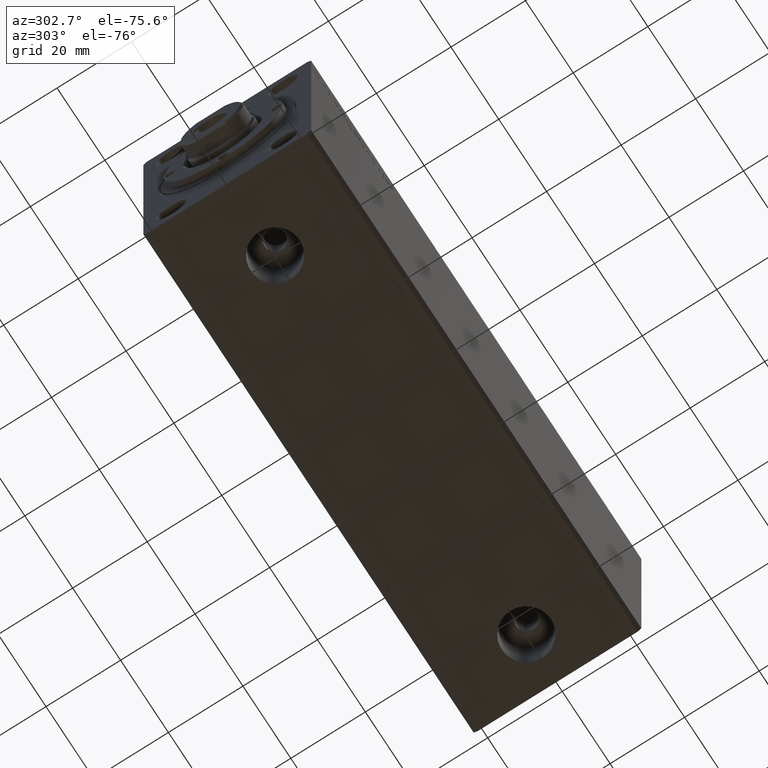
[diagram: clean part render]
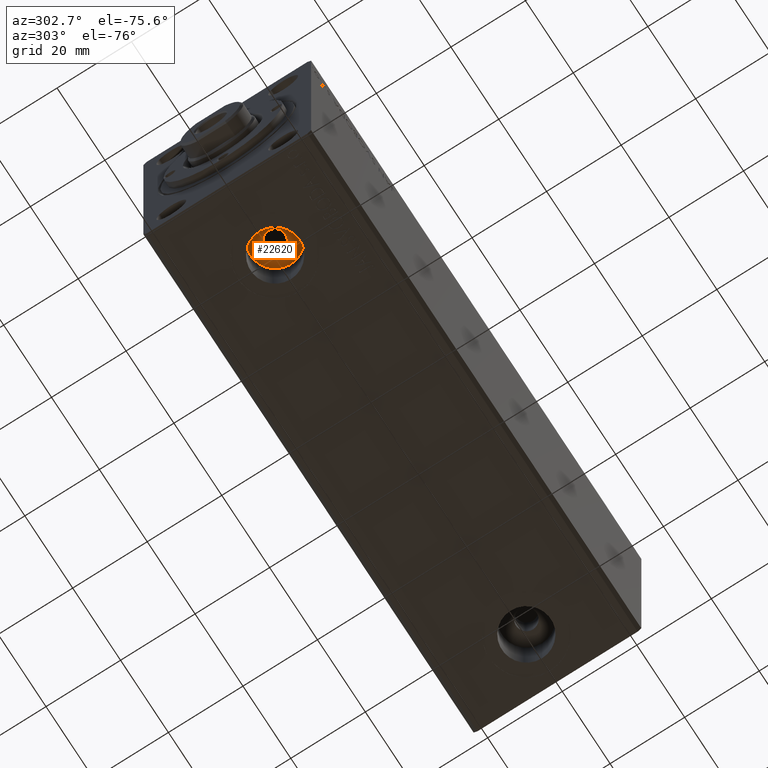
[diagram: same view with one face highlighted and labeled with its STEP entity id]
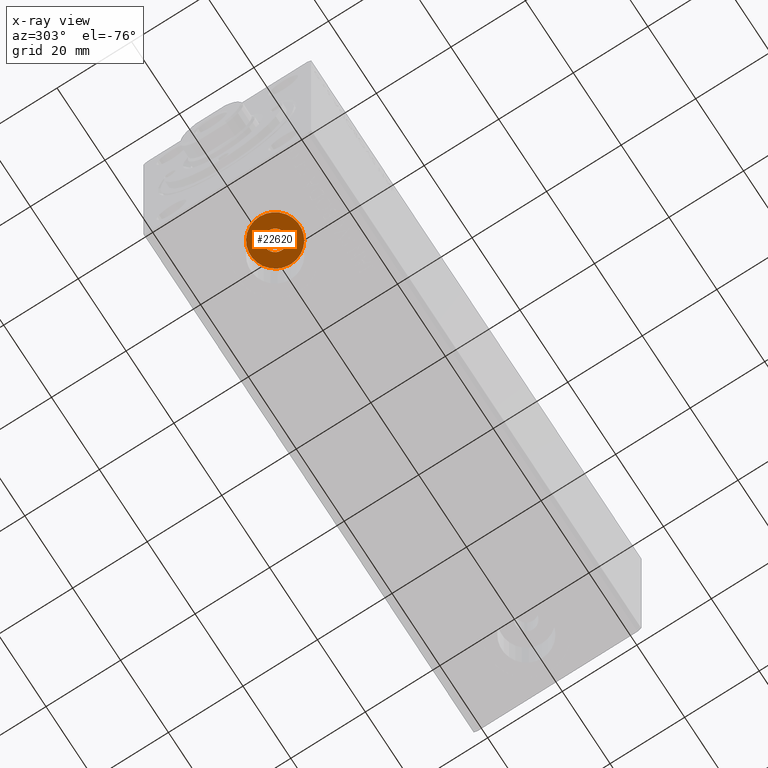
[diagram: x-ray of the same camera — body ghosted, the highlighted face saturated]
A machine part, auxiliary view. The second image highlights one B-rep face of the part: STEP entity #22620.
The next image is the same camera in x-ray: the body ghosted, the highlighted face saturated — about 0% of this face is hidden behind the body in this view.
In plain terms, the highlighted planar face has unit normal (0, 0, -1).
Its self-contained STEP definition (entity closure, byte-faithful):
#116 = EDGE_CURVE ( 'NONE', #40463, #10320, #36890, .T. ) ;
#1899 = DIRECTION ( 'NONE',  ( -1.000000000000000000, 0.000000000000000000, 0.000000000000000000 ) ) ;
#2712 = PLANE ( 'NONE',  #25240 ) ;
#4143 = AXIS2_PLACEMENT_3D ( 'NONE', #29699, #26795, #40168 ) ;
#4947 = CIRCLE ( 'NONE', #10651, 2.749999999999999112 ) ;
#5851 = CARTESIAN_POINT ( 'NONE',  ( 26.57999999999999829, 3.384576556735897587E-15, -18.79999999999999716 ) ) ;
#8360 = EDGE_CURVE ( 'NONE', #15917, #39107, #4947, .T. ) ;
#8878 = DIRECTION ( 'NONE',  ( -1.000000000000000000, 0.000000000000000000, 0.000000000000000000 ) ) ;
#10074 = FACE_OUTER_BOUND ( 'NONE', #24352, .T. ) ;
#10320 = VERTEX_POINT ( 'NONE', #5851 ) ;
#10458 = AXIS2_PLACEMENT_3D ( 'NONE', #28313, #11567, #8878 ) ;
#10651 = AXIS2_PLACEMENT_3D ( 'NONE', #13523, #31302, #36945 ) ;
#11567 = DIRECTION ( 'NONE',  ( 0.000000000000000000, 0.000000000000000000, -1.000000000000000000 ) ) ;
#12949 = CARTESIAN_POINT ( 'NONE',  ( 22.74999999999999645, 3.367778697655218053E-16, -18.79999999999999716 ) ) ;
#13523 = CARTESIAN_POINT ( 'NONE',  ( 19.99999999999999645, 0.000000000000000000, -18.79999999999999716 ) ) ;
#15917 = VERTEX_POINT ( 'NONE', #43442 ) ;
#17120 = EDGE_CURVE ( 'NONE', #39107, #15917, #30396, .T. ) ;
#17326 = ORIENTED_EDGE ( 'NONE', *, *, #27559, .T. ) ;
#22620 = ADVANCED_FACE ( 'NONE', ( #23012, #10074 ), #2712, .T. ) ;
#22669 = ORIENTED_EDGE ( 'NONE', *, *, #8360, .F. ) ;
#23012 = FACE_BOUND ( 'NONE', #31513, .T. ) ;
#24352 = EDGE_LOOP ( 'NONE', ( #42929, #17326 ) ) ;
#25240 = AXIS2_PLACEMENT_3D ( 'NONE', #39964, #36617, #43313 ) ;
#26795 = DIRECTION ( 'NONE',  ( 0.000000000000000000, 0.000000000000000000, -1.000000000000000000 ) ) ;
#27559 = EDGE_CURVE ( 'NONE', #10320, #40463, #36075, .T. ) ;
#27737 = ORIENTED_EDGE ( 'NONE', *, *, #17120, .F. ) ;
#28313 = CARTESIAN_POINT ( 'NONE',  ( 19.99999999999999645, 0.000000000000000000, -18.79999999999999716 ) ) ;
#28888 = CARTESIAN_POINT ( 'NONE',  ( 19.99999999999999645, 2.578758962896938545E-15, -18.79999999999999716 ) ) ;
#29699 = CARTESIAN_POINT ( 'NONE',  ( 19.99999999999999645, 2.578758962896938545E-15, -18.79999999999999716 ) ) ;
#30396 = CIRCLE ( 'NONE', #10458, 2.749999999999999112 ) ;
#31302 = DIRECTION ( 'NONE',  ( 0.000000000000000000, 0.000000000000000000, -1.000000000000000000 ) ) ;
#31425 = CARTESIAN_POINT ( 'NONE',  ( 13.41999999999999460, 2.578758962896938545E-15, -18.79999999999999716 ) ) ;
#31513 = EDGE_LOOP ( 'NONE', ( #22669, #27737 ) ) ;
#32456 = DIRECTION ( 'NONE',  ( 0.000000000000000000, 0.000000000000000000, -1.000000000000000000 ) ) ;
#33938 = AXIS2_PLACEMENT_3D ( 'NONE', #28888, #32456, #1899 ) ;
#36075 = CIRCLE ( 'NONE', #33938, 6.580000000000002736 ) ;
#36617 = DIRECTION ( 'NONE',  ( 0.000000000000000000, 0.000000000000000000, -1.000000000000000000 ) ) ;
#36890 = CIRCLE ( 'NONE', #4143, 6.580000000000002736 ) ;
#36945 = DIRECTION ( 'NONE',  ( -1.000000000000000000, 0.000000000000000000, 0.000000000000000000 ) ) ;
#39107 = VERTEX_POINT ( 'NONE', #12949 ) ;
#39964 = CARTESIAN_POINT ( 'NONE',  ( 19.99999999999999645, 2.578758962896938545E-15, -18.79999999999999716 ) ) ;
#40168 = DIRECTION ( 'NONE',  ( -1.000000000000000000, 0.000000000000000000, 0.000000000000000000 ) ) ;
#40463 = VERTEX_POINT ( 'NONE', #31425 ) ;
#42929 = ORIENTED_EDGE ( 'NONE', *, *, #116, .T. ) ;
#43313 = DIRECTION ( 'NONE',  ( -1.000000000000000000, 0.000000000000000000, -0.000000000000000000 ) ) ;
#43442 = CARTESIAN_POINT ( 'NONE',  ( 17.24999999999999645, 0.000000000000000000, -18.79999999999999716 ) ) ;